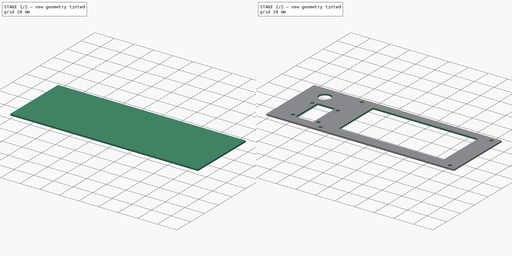
[diagram: build sequence overview — one tinted view per stage of 2, left to right]
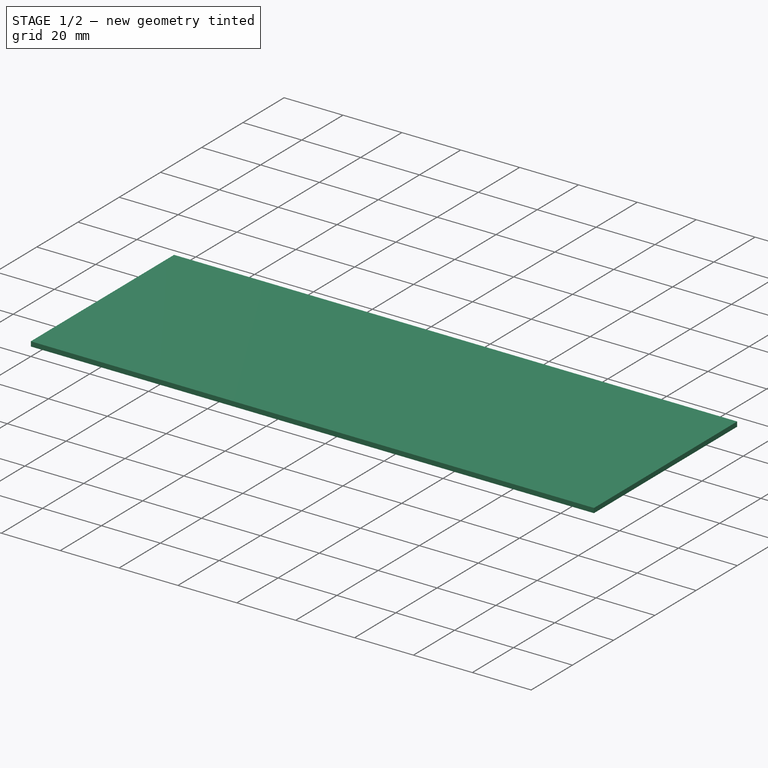
[diagram: stage 1 of 2 — iso view after this stage's code; geometry added in this stage tinted green]
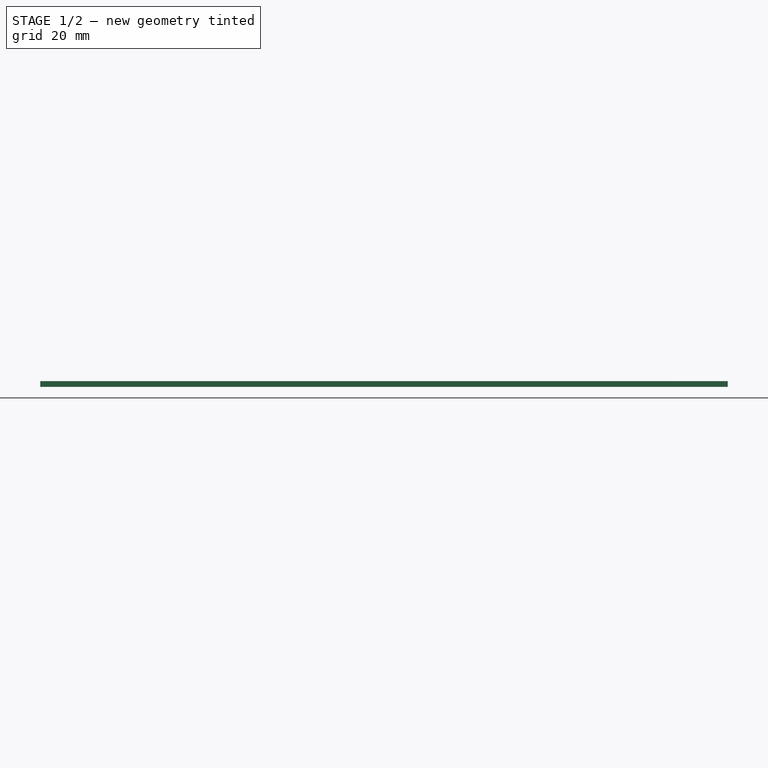
[diagram: stage 1 of 2 — front view after this stage's code; geometry added in this stage tinted green]
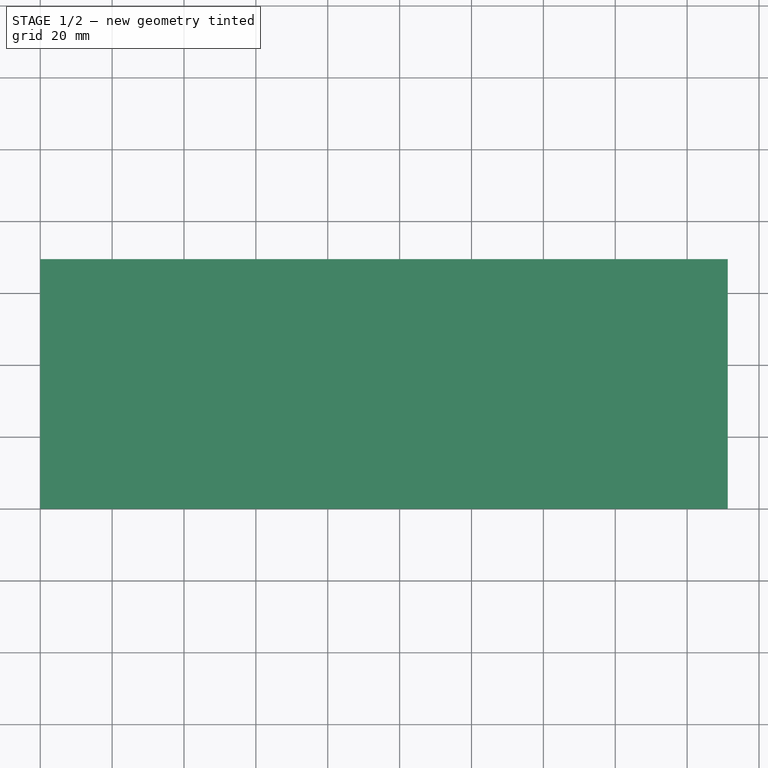
[diagram: stage 1 of 2 — top view after this stage's code; geometry added in this stage tinted green]
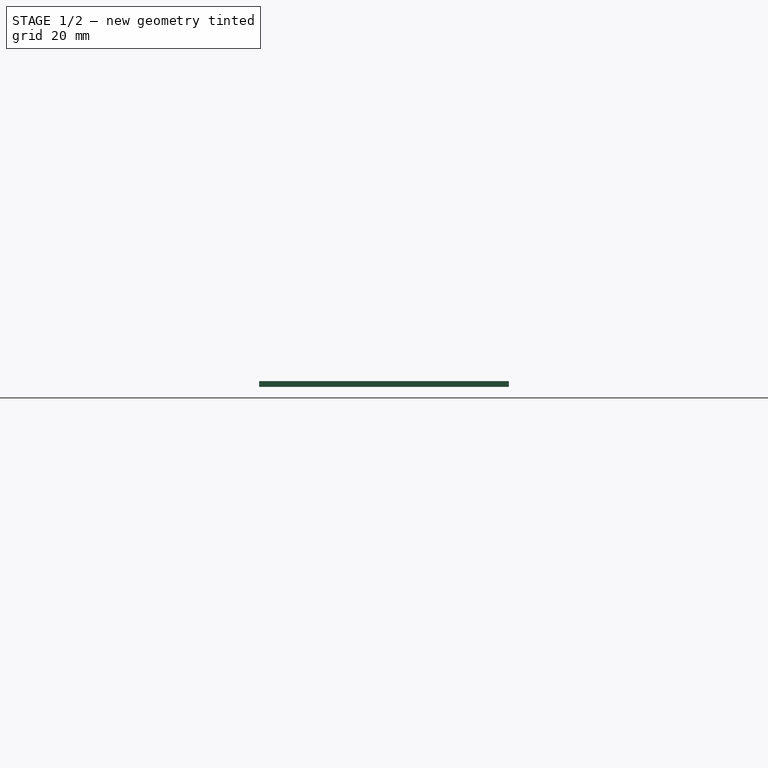
[diagram: stage 1 of 2 — right view after this stage's code; geometry added in this stage tinted green]
FCSTD DOCUMENT  (FreeCAD 0.18R4 (GitTag))
Label: front panel
License: All rights reserved
LicenseURL: http://en.wikipedia.org/wiki/All_rights_reserved
objects: PartDesign::Body×2, Sketcher::SketchObject×2, PartDesign::Pad×1, PartDesign::Pocket×1
note: 8 computed .brp shape members not serialized (recipe doc carries the construction recipe); baked Part::Feature solids carry a one-line shape summary decoded from their .brp

FEATURE [PartDesign::Body] Body
  Origin = -> Origin
FEATURE [Sketcher::SketchObject] Sketch
  MapMode = 5
  Support = -> [XY_Plane001]
  sketch-geometry (4):
    g0: LineSegment StartX=0 StartY=0 StartZ=0 EndX=191.3 EndY=0 EndZ=0
    g1: LineSegment StartX=191.3 StartY=0 StartZ=0 EndX=191.3 EndY=69.5 EndZ=0
    g2: LineSegment StartX=191.3 StartY=69.5 StartZ=0 EndX=0 EndY=69.5 EndZ=0
    g3: LineSegment StartX=0 StartY=69.5 StartZ=0 EndX=0 EndY=0 EndZ=0
  constraints (11):
    c: Coincident(g0,g1)
    c: Coincident(g1,g2)
    c: Coincident(g2,g3)
    c: Coincident(g3,g0)
    c: Horizontal(g0)
    c: Horizontal(g2)
    c: Vertical(g1)
    c: Vertical(g3)
    c: Coincident(g0,g-1)
    c: DistanceX(g2,g2) = 191.3
    c: DistanceY(g1,g1) = 69.5
FEATURE [PartDesign::Pad] Pad
  Length = 1.6
  Length2 = 100
  Profile = -> Sketch
  Type = 0
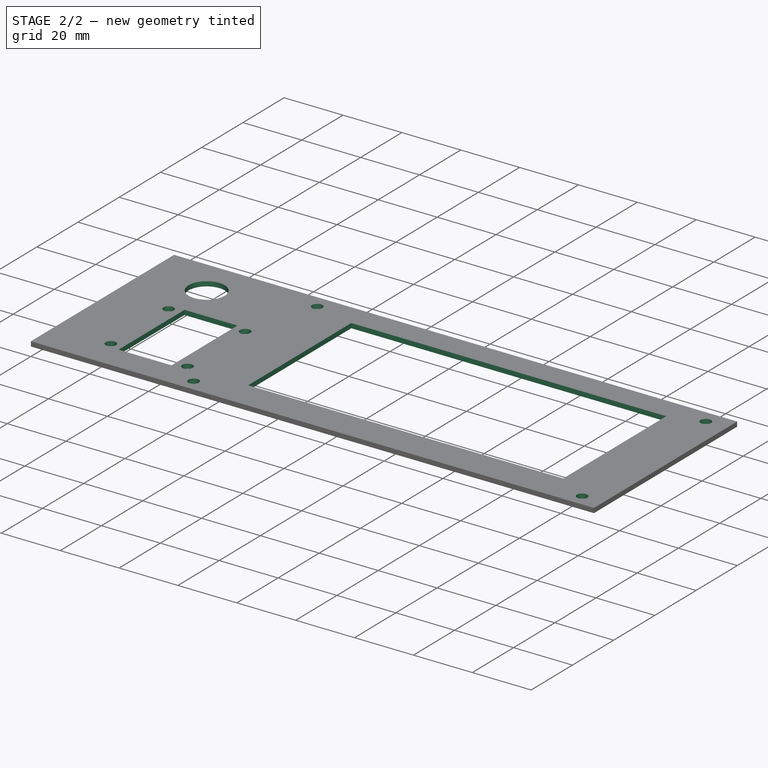
[diagram: stage 2 of 2 — iso view after this stage's code; geometry added in this stage tinted green]
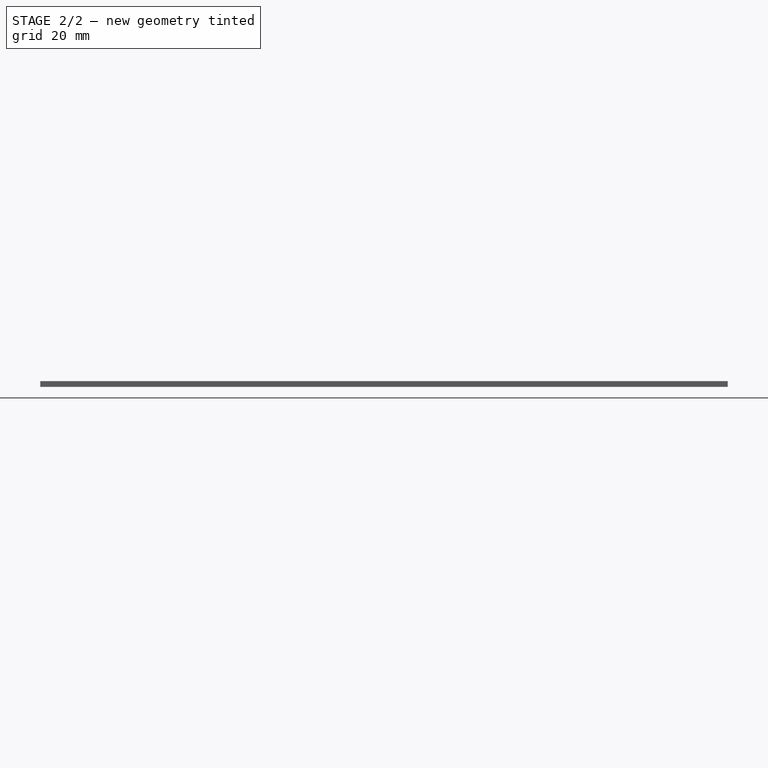
[diagram: stage 2 of 2 — front view after this stage's code; geometry added in this stage tinted green]
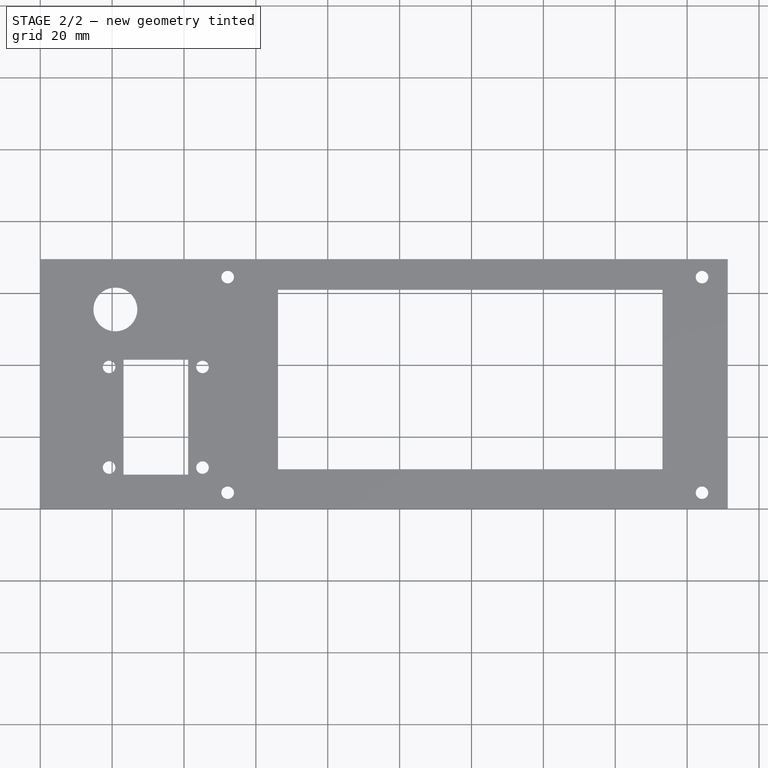
[diagram: stage 2 of 2 — top view after this stage's code; geometry added in this stage tinted green]
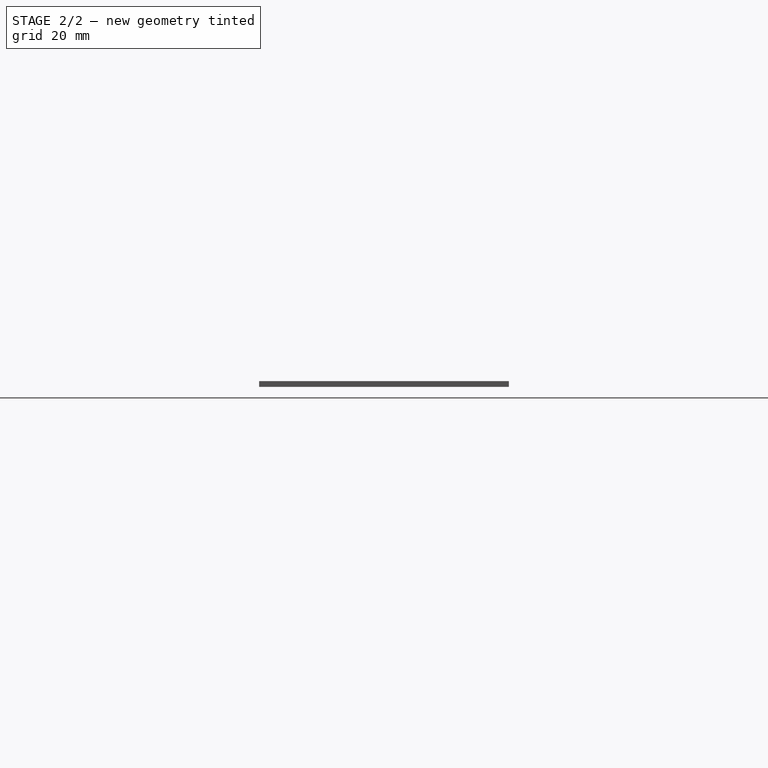
[diagram: stage 2 of 2 — right view after this stage's code; geometry added in this stage tinted green]
FEATURE [Sketcher::SketchObject] Sketch002
  MapMode = 5
  Placement = pos=(0,0,1.6) rot=(0,0,1;0rad)
  Support = -> [Pad]
  sketch-geometry (49):
    g0: LineSegment [constr] StartX=3.15 StartY=68.25 StartZ=0 EndX=188.15 EndY=68.25 EndZ=0
    g1: LineSegment [constr] StartX=188.15 StartY=68.25 StartZ=0 EndX=188.15 EndY=1.25 EndZ=0
    g2: LineSegment [constr] StartX=188.15 StartY=1.25 StartZ=0 EndX=3.15 EndY=1.25 EndZ=0
    g3: LineSegment [constr] StartX=3.15 StartY=1.25 StartZ=0 EndX=3.15 EndY=68.25 EndZ=0
    g4: Circle CenterX=184.15 CenterY=4.5 CenterZ=0 NormalX=0 NormalY=0 NormalZ=1 AngleXU=0 Radius=1.75
    g5: Circle CenterX=52.15 CenterY=4.5 CenterZ=0 NormalX=0 NormalY=0 NormalZ=1 AngleXU=0 Radius=1.75
    g6: LineSegment [constr] StartX=184.15 StartY=4.5 StartZ=0 EndX=52.15 EndY=4.5 EndZ=0
    g7: Circle CenterX=184.15 CenterY=64.5 CenterZ=0 NormalX=0 NormalY=0 NormalZ=1 AngleXU=0 Radius=1.75
    g8: LineSegment [constr] StartX=184.15 StartY=4.5 StartZ=0 EndX=184.15 EndY=64.5 EndZ=0
    g9: Circle CenterX=52.15 CenterY=64.5 CenterZ=0 NormalX=0 NormalY=0 NormalZ=1 AngleXU=0 Radius=1.75
    g10: LineSegment [constr] StartX=184.15 StartY=64.5 StartZ=0 EndX=52.15 EndY=64.5 EndZ=0
    g11: LineSegment [constr] StartX=48.15 StartY=68.5 StartZ=0 EndX=188.15 EndY=68.5 EndZ=0
    g12: LineSegment [constr] StartX=188.15 StartY=68.5 StartZ=0 EndX=188.15 EndY=0.5 EndZ=0
    g13: LineSegment [constr] StartX=188.15 StartY=0.5 StartZ=0 EndX=48.15 EndY=0.5 EndZ=0
    g14: LineSegment [constr] StartX=48.15 StartY=0.5 StartZ=0 EndX=48.15 EndY=68.5 EndZ=0
    g15: LineSegment [constr] StartX=0 StartY=0 StartZ=0 EndX=191.3 EndY=0 EndZ=0
    g16: LineSegment [constr] StartX=191.3 StartY=0 StartZ=0 EndX=191.3 EndY=69.5 EndZ=0
    g17: LineSegment [constr] StartX=191.3 StartY=69.5 StartZ=0 EndX=0 EndY=69.5 EndZ=0
    g18: LineSegment [constr] StartX=0 StartY=69.5 StartZ=0 EndX=0 EndY=0 EndZ=0
    g19: LineSegment [constr] StartX=61.15 StartY=66 StartZ=0 EndX=178.15 EndY=66 EndZ=0
    g20: LineSegment [constr] StartX=178.15 StartY=66 StartZ=0 EndX=178.15 EndY=6 EndZ=0
    g21: LineSegment [constr] StartX=178.15 StartY=6 StartZ=0 EndX=61.15 EndY=6 EndZ=0
    g22: LineSegment [constr] StartX=61.15 StartY=6 StartZ=0 EndX=61.15 EndY=66 EndZ=0
    g23: LineSegment StartX=66.15 StartY=61 StartZ=0 EndX=173.15 EndY=61 EndZ=0
    g24: LineSegment StartX=173.15 StartY=61 StartZ=0 EndX=173.15 EndY=11 EndZ=0
    g25: LineSegment StartX=173.15 StartY=11 StartZ=0 EndX=66.15 EndY=11 EndZ=0
    g26: LineSegment StartX=66.15 StartY=11 StartZ=0 EndX=66.15 EndY=61 EndZ=0
    g27: Circle CenterX=19.15 CenterY=11.5 CenterZ=0 NormalX=0 NormalY=0 NormalZ=1 AngleXU=0 Radius=1.75
    g28: Circle CenterX=19.15 CenterY=39.5 CenterZ=0 NormalX=0 NormalY=0 NormalZ=1 AngleXU=0 Radius=1.75
    g29: LineSegment [constr] StartX=19.15 StartY=11.5 StartZ=0 EndX=19.15 EndY=39.5 EndZ=0
    g30: Circle CenterX=45.15 CenterY=11.5 CenterZ=0 NormalX=0 NormalY=0 NormalZ=1 AngleXU=0 Radius=1.75
    g31: LineSegment [constr] StartX=19.15 StartY=11.5 StartZ=0 EndX=45.15 EndY=11.5 EndZ=0
    g32: Circle CenterX=45.15 CenterY=39.5 CenterZ=0 NormalX=0 NormalY=0 NormalZ=1 AngleXU=0 Radius=1.75
    g33: LineSegment [constr] StartX=45.15 StartY=11.5 StartZ=0 EndX=45.15 EndY=39.5 EndZ=0
    g34: LineSegment StartX=23.15 StartY=41.5 StartZ=0 EndX=41.15 EndY=41.5 EndZ=0
    g35: LineSegment StartX=41.15 StartY=41.5 StartZ=0 EndX=41.15 EndY=9.5 EndZ=0
    g36: LineSegment StartX=41.15 StartY=9.5 StartZ=0 EndX=23.15 EndY=9.5 EndZ=0
    g37: LineSegment StartX=23.15 StartY=9.5 StartZ=0 EndX=23.15 EndY=41.5 EndZ=0
    g38: LineSegment [constr] StartX=16.65 StartY=42.5 StartZ=0 EndX=47.65 EndY=42.5 EndZ=0
    g39: LineSegment [constr] StartX=47.65 StartY=42.5 StartZ=0 EndX=47.65 EndY=8.5 EndZ=0
    g40: LineSegment [constr] StartX=47.65 StartY=8.5 StartZ=0 EndX=16.65 EndY=8.5 EndZ=0
    g41: LineSegment [constr] StartX=16.65 StartY=8.5 StartZ=0 EndX=16.65 EndY=42.5 EndZ=0
    g42: LineSegment [constr] StartX=13.15 StartY=63.25 StartZ=0 EndX=28.65 EndY=63.25 EndZ=0
    g43: LineSegment [constr] StartX=28.65 StartY=63.25 StartZ=0 EndX=28.65 EndY=47.75 EndZ=0
    g44: LineSegment [constr] StartX=28.65 StartY=47.75 StartZ=0 EndX=13.15 EndY=47.75 EndZ=0
    g45: LineSegment [constr] StartX=13.15 StartY=47.75 StartZ=0 EndX=13.15 EndY=63.25 EndZ=0
    g46: LineSegment [constr] StartX=13.15 StartY=47.75 StartZ=0 EndX=28.65 EndY=63.25 EndZ=0
    g47: LineSegment [constr] StartX=28.65 StartY=47.75 StartZ=0 EndX=13.15 EndY=63.25 EndZ=0
    g48: Circle CenterX=20.9 CenterY=55.5 CenterZ=0 NormalX=0 NormalY=0 NormalZ=1 AngleXU=0 Radius=6.1
  constraints (138):
    c: Coincident(g0,g1)
    c: Coincident(g1,g2)
    c: Coincident(g2,g3)
    c: Coincident(g3,g0)
    c: Horizontal(g0)
    c: Horizontal(g2)
    c: Vertical(g1)
    c: Vertical(g3)
    c: DistanceX(g0,g0) = 185
    c: DistanceY(g3,g3) = 67
    c: DistanceX(g-1,g2) = 3.15
    c: DistanceY(g-1,g2) = 1.25
    c: Diameter(g4) = 3.5
    c: Diameter(g5) = 3.5
    c: Coincident(g4,g6)
    c: Coincident(g5,g6)
    c: Distance(g6) = 132
    c: Angle(g6) = 3.14159
    c: Diameter(g7) = 3.5
    c: Coincident(g4,g8)
    c: Coincident(g7,g8)
    c: Distance(g8) = 60
    c: Perpendicular(g8,g6)
    c: Diameter(g9) = 3.5
    c: Coincident(g7,g10)
    c: Coincident(g9,g10)
    c: Equal(g6,g10)
    c: Parallel(g10,g6)
    c: Coincident(g11,g12)
    c: Coincident(g12,g13)
    c: Coincident(g13,g14)
    c: Coincident(g14,g11)
    c: Horizontal(g11)
    c: Horizontal(g13)
    c: Vertical(g12)
    c: Vertical(g14)
    c: Coincident(g15,g16)
    c: Coincident(g16,g17)
    c: Coincident(g17,g18)
    c: Coincident(g18,g15)
    c: Horizontal(g15)
    c: Horizontal(g17)
    c: Vertical(g16)
    c: Vertical(g18)
    c: Coincident(g-1,g15)
    c: DistanceY(g16,g16) = 69.5
    c: DistanceX(g17,g17) = 191.3
    c: DistanceX(g13,g13) = 140
    c: DistanceY(g14,g14) = 68
    c: DistanceX(g7,g11) = 4
    c: DistanceY(g7,g11) = 4
    c: Coincident(g19,g20)
    c: Coincident(g20,g21)
    c: Coincident(g21,g22)
    c: Coincident(g22,g19)
    c: Horizontal(g19)
    c: Horizontal(g21)
    c: Vertical(g20)
    c: Vertical(g22)
    c: DistanceX(g11,g19) = 13
    c: DistanceY(g19,g11) = 2.5
    c: DistanceY(g22,g22) = 60
    c: DistanceX(g19,g19) = 117
    c: Coincident(g23,g24)
    c: Coincident(g24,g25)
    c: Coincident(g25,g26)
    c: Coincident(g26,g23)
    c: Horizontal(g23)
    c: Horizontal(g25)
    c: Vertical(g24)
    c: Vertical(g26)
    c: DistanceX(g19,g23) = 5
    c: DistanceY(g23,g19) = 5
    c: DistanceX(g24,g20) = 5
    c: DistanceY(g20,g24) = 5
    c: DistanceY(g15,g12) = 0.5
    c: Vertical(g12,g1)
    c: Diameter(g27) = 3.5
    c: Diameter(g28) = 3.5
    c: Coincident(g27,g29)
    c: Coincident(g28,g29)
    c: Distance(g29) = 28
    c: Angle(g29) = 1.5708
    c: Diameter(g30) = 3.5
    c: Coincident(g27,g31)
    c: Coincident(g30,g31)
    c: Distance(g31) = 26
    c: Perpendicular(g31,g29)
    c: Diameter(g32) = 3.5
    c: Coincident(g30,g33)
    c: Coincident(g32,g33)
    c: Equal(g29,g33)
    c: Parallel(g33,g29)
    c: Coincident(g34,g35)
    c: Coincident(g35,g36)
    c: Coincident(g36,g37)
    c: Coincident(g37,g34)
    c: Horizontal(g34)
    c: Horizontal(g36)
    c: Vertical(g35)
    c: Vertical(g37)
    c: DistanceX(g34,g34) = 18
    c: Coincident(g38,g39)
    c: Coincident(g39,g40)
    c: Coincident(g40,g41)
    c: Coincident(g41,g38)
    c: Horizontal(g38)
    c: Horizontal(g40)
    c: Vertical(g39)
    c: Vertical(g41)
    c: DistanceY(g39,g39) = 34
    c: DistanceX(g38,g38) = 31
    c: DistanceX(g40,g27) = 2.5
    c: DistanceY(g40,g27) = 3
    c: DistanceX(g35,g39) = 6.5
    c: DistanceY(g39,g35) = 1
    c: DistanceY(g34,g38) = 1
    c: DistanceX(g30,g5) = 7
    c: DistanceY(g5,g30) = 7
    c: Coincident(g42,g43)
    c: Coincident(g43,g44)
    c: Coincident(g44,g45)
    c: Coincident(g45,g42)
    c: Horizontal(g42)
    c: Horizontal(g44)
    c: Vertical(g43)
    c: Vertical(g45)
    c: DistanceY(g45,g45) = 15.5
    c: DistanceX(g42,g42) = 15.5
    c: Coincident(g42,g47)
    c: Coincident(g47,g43)
    c: Coincident(g46,g44)
    c: Coincident(g46,g42)
    c: Diameter(g48) = 12.2
    c: PointOnObject(g48,g46)
    c: PointOnObject(g48,g47)
    c: DistanceX(g0,g42) = 10
    c: DistanceY(g42,g0) = 5
FEATURE [PartDesign::Pocket] Pocket
  BaseFeature = -> Pad
  Length = 5
  Length2 = 100
  Profile = -> Sketch002
  Type = 1
FEATURE [PartDesign::Body] Body001
  Group = -> [Sketch,Pad,Sketch002,Pocket]
  Origin = -> Origin001
  Tip = -> Pocket
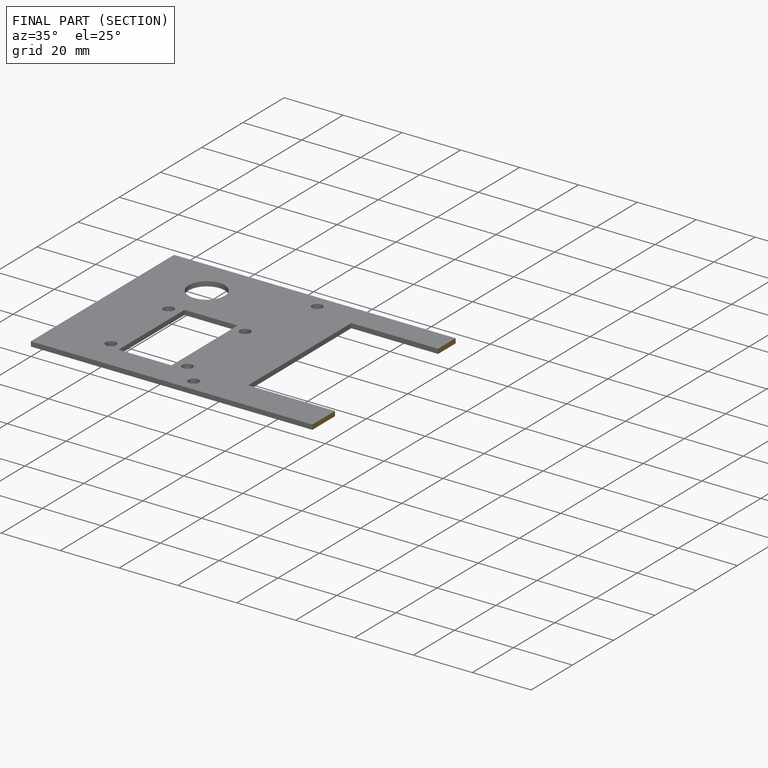
[diagram: finished part — half-section view (interior)]
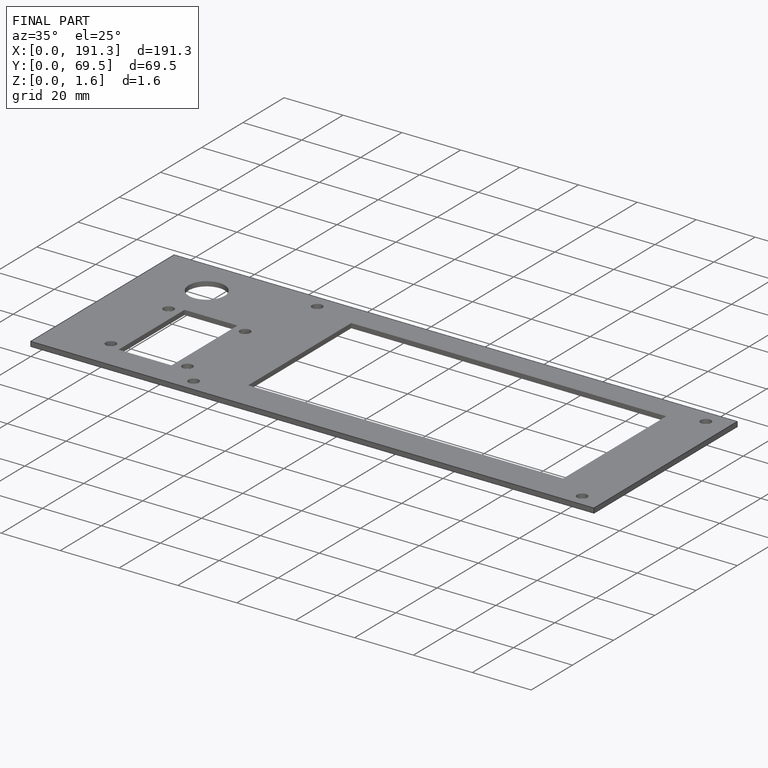
[diagram: finished part — iso view with bounding-box wireframe]
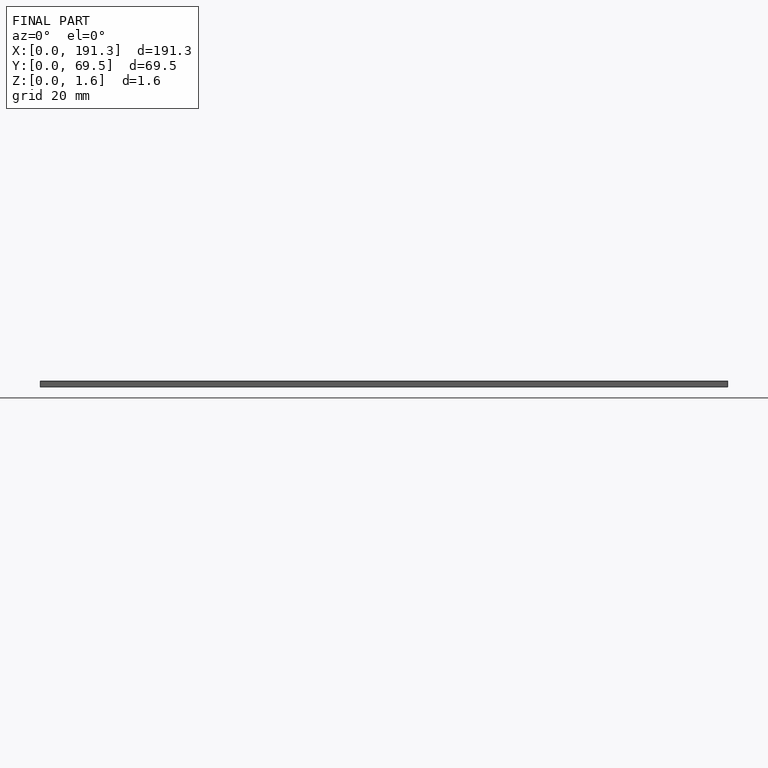
[diagram: finished part — front view with bounding-box wireframe]
